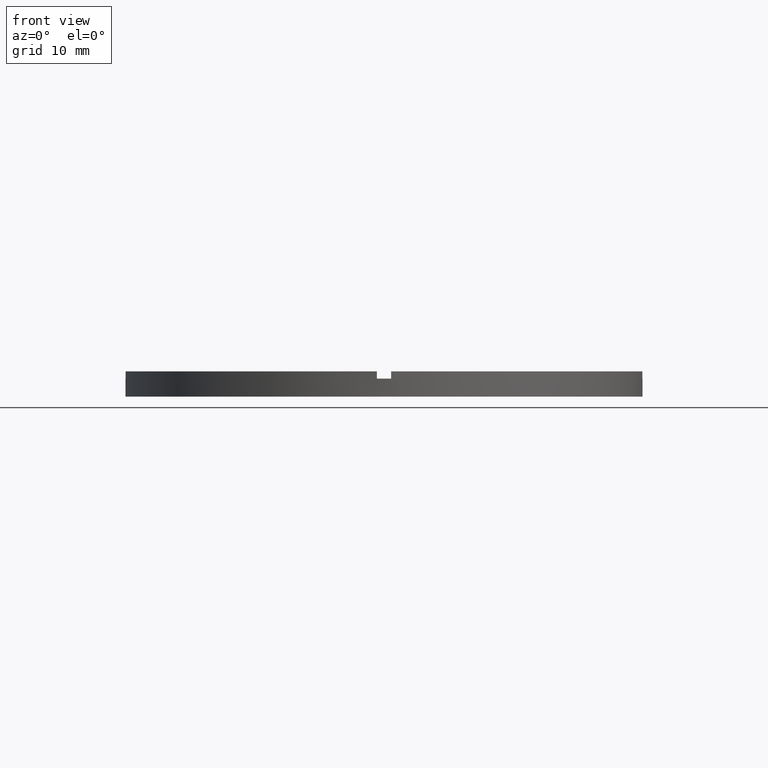
[diagram: clean part render]
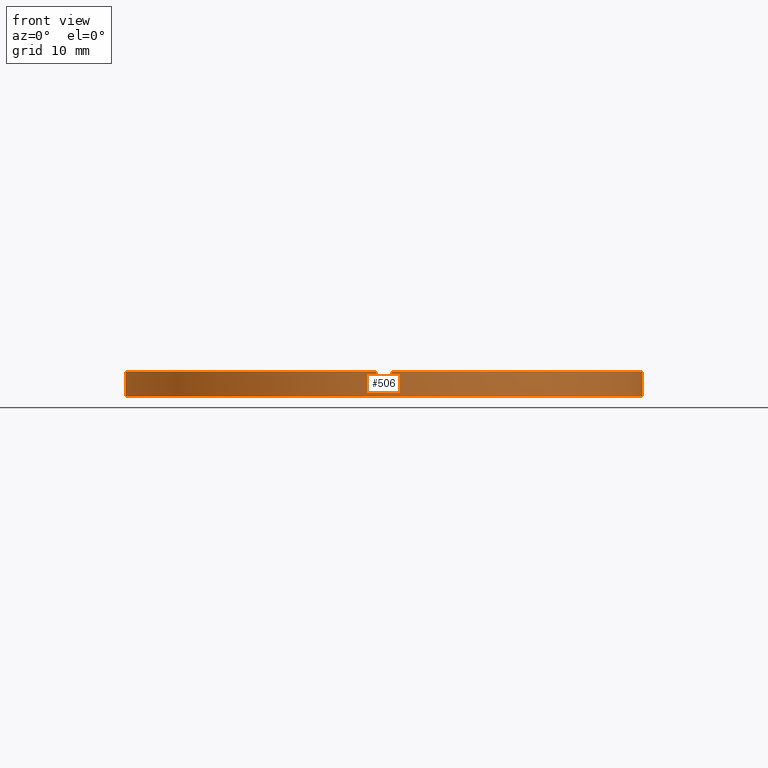
[diagram: same view with one face highlighted and labeled with its STEP entity id]
A machine part, front view. The second image highlights one B-rep face of the part: STEP entity #506.
In plain terms, the highlighted cylindrical surface (partial cylindrical patch) has radius 36 mm, axis along (-0, -0, -1).
Its self-contained STEP definition (entity closure, byte-faithful):
#18 = VECTOR ( 'NONE', #714, 1000.000000000000000 ) ;
#26 = LINE ( 'NONE', #672, #29 ) ;
#29 = VECTOR ( 'NONE', #751, 1000.000000000000000 ) ;
#35 = ORIENTED_EDGE ( 'NONE', *, *, #429, .T. ) ;
#40 = EDGE_CURVE ( 'NONE', #383, #122, #649, .T. ) ;
#42 = DIRECTION ( 'NONE',  ( 0.000000000000000000, 0.000000000000000000, 1.000000000000000000 ) ) ;
#43 = DIRECTION ( 'NONE',  ( -0.000000000000000000, -0.000000000000000000, -1.000000000000000000 ) ) ;
#46 = EDGE_LOOP ( 'NONE', ( #320, #276, #325, #119, #35, #580, #115, #684, #289, #659, #664, #285 ) ) ;
#53 = EDGE_CURVE ( 'NONE', #398, #396, #130, .T. ) ;
#60 = LINE ( 'NONE', #779, #311 ) ;
#71 = AXIS2_PLACEMENT_3D ( 'NONE', #265, #156, #474 ) ;
#82 = DIRECTION ( 'NONE',  ( -0.000000000000000000, -0.000000000000000000, -1.000000000000000000 ) ) ;
#89 = DIRECTION ( 'NONE',  ( 0.000000000000000000, 0.000000000000000000, 1.000000000000000000 ) ) ;
#115 = ORIENTED_EDGE ( 'NONE', *, *, #489, .T. ) ;
#118 = DIRECTION ( 'NONE',  ( 1.000000000000000000, 0.000000000000000000, 0.000000000000000000 ) ) ;
#119 = ORIENTED_EDGE ( 'NONE', *, *, #40, .F. ) ;
#121 = CARTESIAN_POINT ( 'NONE',  ( 0.000000000000000000, 0.000000000000000000, 3.500000000000000000 ) ) ;
#122 = VERTEX_POINT ( 'NONE', #765 ) ;
#124 = CARTESIAN_POINT ( 'NONE',  ( -36.00000000000000000, 0.000000000000000000, 2.500000000000000000 ) ) ;
#130 = CIRCLE ( 'NONE', #71, 36.00000000000000000 ) ;
#142 = CARTESIAN_POINT ( 'NONE',  ( 0.000000000000000000, 0.000000000000000000, 2.500000000000000000 ) ) ;
#156 = DIRECTION ( 'NONE',  ( 0.000000000000000000, 0.000000000000000000, 1.000000000000000000 ) ) ;
#162 = AXIS2_PLACEMENT_3D ( 'NONE', #560, #89, #337 ) ;
#163 = CIRCLE ( 'NONE', #615, 36.00000000000000000 ) ;
#181 = LINE ( 'NONE', #260, #445 ) ;
#185 = LINE ( 'NONE', #231, #711 ) ;
#192 = LINE ( 'NONE', #322, #716 ) ;
#194 = FACE_OUTER_BOUND ( 'NONE', #46, .T. ) ;
#202 = VERTEX_POINT ( 'NONE', #498 ) ;
#228 = CARTESIAN_POINT ( 'NONE',  ( -1.000000000000160316, -35.98610843089315381, 3.500000000000000000 ) ) ;
#231 = CARTESIAN_POINT ( 'NONE',  ( 35.98610843089315381, -1.000000000000157874, 3.500000000000000000 ) ) ;
#240 = EDGE_CURVE ( 'NONE', #294, #202, #691, .T. ) ;
#250 = EDGE_CURVE ( 'NONE', #373, #737, #163, .T. ) ;
#260 = CARTESIAN_POINT ( 'NONE',  ( 0.9999999999998397948, -35.98610843089316091, 3.500000000000000000 ) ) ;
#263 = DIRECTION ( 'NONE',  ( 0.000000000000000000, 0.000000000000000000, 1.000000000000000000 ) ) ;
#265 = CARTESIAN_POINT ( 'NONE',  ( 0.000000000000000000, 0.000000000000000000, 2.500000000000000000 ) ) ;
#276 = ORIENTED_EDGE ( 'NONE', *, *, #419, .F. ) ;
#285 = ORIENTED_EDGE ( 'NONE', *, *, #250, .T. ) ;
#289 = ORIENTED_EDGE ( 'NONE', *, *, #534, .T. ) ;
#290 = CARTESIAN_POINT ( 'NONE',  ( 0.000000000000000000, 0.000000000000000000, 0.000000000000000000 ) ) ;
#294 = VERTEX_POINT ( 'NONE', #532 ) ;
#311 = VECTOR ( 'NONE', #43, 1000.000000000000000 ) ;
#320 = ORIENTED_EDGE ( 'NONE', *, *, #655, .F. ) ;
#322 = CARTESIAN_POINT ( 'NONE',  ( -1.000000000000160316, -35.98610843089315381, 3.500000000000000000 ) ) ;
#325 = ORIENTED_EDGE ( 'NONE', *, *, #478, .T. ) ;
#334 = AXIS2_PLACEMENT_3D ( 'NONE', #472, #639, #519 ) ;
#337 = DIRECTION ( 'NONE',  ( 1.000000000000000000, 0.000000000000000000, 0.000000000000000000 ) ) ;
#347 = CARTESIAN_POINT ( 'NONE',  ( 36.00000000000000000, 4.408728476930470856E-15, 2.500000000000000000 ) ) ;
#358 = VERTEX_POINT ( 'NONE', #686 ) ;
#373 = VERTEX_POINT ( 'NONE', #754 ) ;
#383 = VERTEX_POINT ( 'NONE', #744 ) ;
#384 = VERTEX_POINT ( 'NONE', #436 ) ;
#388 = AXIS2_PLACEMENT_3D ( 'NONE', #121, #665, #595 ) ;
#390 = EDGE_CURVE ( 'NONE', #358, #420, #720, .T. ) ;
#391 = DIRECTION ( 'NONE',  ( 0.000000000000000000, 0.000000000000000000, 1.000000000000000000 ) ) ;
#396 = VERTEX_POINT ( 'NONE', #673 ) ;
#398 = VERTEX_POINT ( 'NONE', #124 ) ;
#404 = DIRECTION ( 'NONE',  ( 0.000000000000000000, 0.000000000000000000, 1.000000000000000000 ) ) ;
#419 = EDGE_CURVE ( 'NONE', #384, #631, #702, .T. ) ;
#420 = VERTEX_POINT ( 'NONE', #228 ) ;
#428 = CYLINDRICAL_SURFACE ( 'NONE', #334, 36.00000000000000000 ) ;
#429 = EDGE_CURVE ( 'NONE', #383, #202, #181, .T. ) ;
#436 = CARTESIAN_POINT ( 'NONE',  ( 35.98610843089315381, -1.000000000000157874, 2.500000000000000000 ) ) ;
#445 = VECTOR ( 'NONE', #82, 1000.000000000000000 ) ;
#472 = CARTESIAN_POINT ( 'NONE',  ( 0.000000000000000000, 0.000000000000000000, 3.500000000000000000 ) ) ;
#474 = DIRECTION ( 'NONE',  ( 1.000000000000000000, 0.000000000000000000, 0.000000000000000000 ) ) ;
#478 = EDGE_CURVE ( 'NONE', #384, #122, #185, .T. ) ;
#481 = CARTESIAN_POINT ( 'NONE',  ( -35.98610843089315381, -1.000000000000027089, 3.500000000000000000 ) ) ;
#489 = EDGE_CURVE ( 'NONE', #294, #420, #192, .T. ) ;
#498 = CARTESIAN_POINT ( 'NONE',  ( 0.9999999999998397948, -35.98610843089316091, 2.500000000000000000 ) ) ;
#501 = DIRECTION ( 'NONE',  ( -0.000000000000000000, 0.000000000000000000, 1.000000000000000000 ) ) ;
#506 = ADVANCED_FACE ( 'NONE', ( #194 ), #428, .T. ) ;
#507 = DIRECTION ( 'NONE',  ( 1.000000000000000000, 0.000000000000000000, 0.000000000000000000 ) ) ;
#516 = AXIS2_PLACEMENT_3D ( 'NONE', #142, #391, #507 ) ;
#519 = DIRECTION ( 'NONE',  ( -1.000000000000000000, 0.000000000000000000, 0.000000000000000000 ) ) ;
#528 = CARTESIAN_POINT ( 'NONE',  ( 0.000000000000000000, 0.000000000000000000, 2.500000000000000000 ) ) ;
#532 = CARTESIAN_POINT ( 'NONE',  ( -1.000000000000160316, -35.98610843089315381, 2.500000000000000000 ) ) ;
#534 = EDGE_CURVE ( 'NONE', #358, #396, #575, .T. ) ;
#560 = CARTESIAN_POINT ( 'NONE',  ( 0.000000000000000000, 0.000000000000000000, 3.500000000000000000 ) ) ;
#575 = LINE ( 'NONE', #481, #18 ) ;
#580 = ORIENTED_EDGE ( 'NONE', *, *, #240, .F. ) ;
#595 = DIRECTION ( 'NONE',  ( 1.000000000000000000, 0.000000000000000000, 0.000000000000000000 ) ) ;
#596 = AXIS2_PLACEMENT_3D ( 'NONE', #528, #501, #752 ) ;
#615 = AXIS2_PLACEMENT_3D ( 'NONE', #290, #42, #118 ) ;
#631 = VERTEX_POINT ( 'NONE', #347 ) ;
#639 = DIRECTION ( 'NONE',  ( -0.000000000000000000, -0.000000000000000000, -1.000000000000000000 ) ) ;
#649 = CIRCLE ( 'NONE', #162, 36.00000000000000000 ) ;
#655 = EDGE_CURVE ( 'NONE', #631, #737, #60, .T. ) ;
#659 = ORIENTED_EDGE ( 'NONE', *, *, #53, .F. ) ;
#664 = ORIENTED_EDGE ( 'NONE', *, *, #767, .T. ) ;
#665 = DIRECTION ( 'NONE',  ( 0.000000000000000000, 0.000000000000000000, 1.000000000000000000 ) ) ;
#672 = CARTESIAN_POINT ( 'NONE',  ( -36.00000000000000000, 0.000000000000000000, 3.500000000000000000 ) ) ;
#673 = CARTESIAN_POINT ( 'NONE',  ( -35.98610843089315381, -1.000000000000027089, 2.500000000000000000 ) ) ;
#684 = ORIENTED_EDGE ( 'NONE', *, *, #390, .F. ) ;
#686 = CARTESIAN_POINT ( 'NONE',  ( -35.98610843089315381, -1.000000000000027089, 3.500000000000000000 ) ) ;
#691 = CIRCLE ( 'NONE', #596, 36.00000000000000000 ) ;
#702 = CIRCLE ( 'NONE', #516, 36.00000000000000000 ) ;
#711 = VECTOR ( 'NONE', #263, 1000.000000000000000 ) ;
#714 = DIRECTION ( 'NONE',  ( -0.000000000000000000, -0.000000000000000000, -1.000000000000000000 ) ) ;
#716 = VECTOR ( 'NONE', #404, 1000.000000000000000 ) ;
#720 = CIRCLE ( 'NONE', #388, 36.00000000000000000 ) ;
#737 = VERTEX_POINT ( 'NONE', #783 ) ;
#744 = CARTESIAN_POINT ( 'NONE',  ( 0.9999999999998397948, -35.98610843089316091, 3.500000000000000000 ) ) ;
#751 = DIRECTION ( 'NONE',  ( -0.000000000000000000, -0.000000000000000000, -1.000000000000000000 ) ) ;
#752 = DIRECTION ( 'NONE',  ( 1.000000000000000000, 0.000000000000000000, 0.000000000000000000 ) ) ;
#754 = CARTESIAN_POINT ( 'NONE',  ( -36.00000000000000000, 0.000000000000000000, 0.000000000000000000 ) ) ;
#765 = CARTESIAN_POINT ( 'NONE',  ( 35.98610843089315381, -1.000000000000157874, 3.500000000000000000 ) ) ;
#767 = EDGE_CURVE ( 'NONE', #398, #373, #26, .T. ) ;
#779 = CARTESIAN_POINT ( 'NONE',  ( 36.00000000000000000, 4.408728476930470856E-15, 3.500000000000000000 ) ) ;
#783 = CARTESIAN_POINT ( 'NONE',  ( 36.00000000000000000, 4.408728476930470856E-15, 0.000000000000000000 ) ) ;